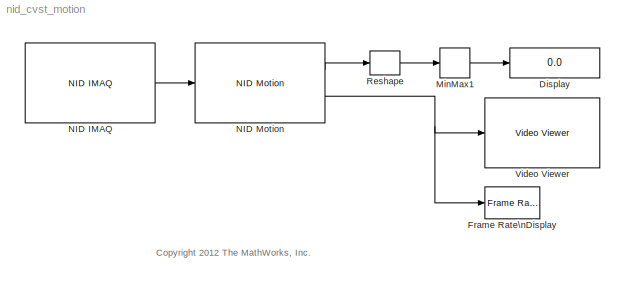
MODEL nid_cvst_motion
KIND model
BLOCK [Display] Display
  Decimation = 1
  Ports = [1]
  SID = 85
BLOCK [Reference] Frame Rate\nDisplay  REF=vipsnks/Frame Rate\nDisplay
  Ports = [1]
  SID = 81
  SourceBlock = vipsnks/Frame Rate\nDisplay
  SourceProductBaseCode = VP
  SourceProductName = Computer Vision Toolbox
  SourceType = Frame Rate Display
  UpdateRate = 10
BLOCK [MinMax] MinMax1
  Function = max
  InputSameDT = off
  Ports = [1, 1]
  SID = 83
  SaturateOnIntegerOverflow = off
BLOCK [Reference] NID IMAQ  REF=nid_lib/NID IMAQ
  Ports = [0, 1]
  SID = 78
  SourceBlock = nid_lib/NID IMAQ
  SourceType = NID IMAQ
  angle = 0
  angle_read = off
  imaq_depth = off
  imaq_image = off
  imaq_ir = off
  imaq_motion = on
  imaq_sample_time = 1/30
  imaq_skeleton = off
  mirror_image = off
  near_mode = off
  needPsiPose = off
  res_fps = VGA (640x480): 30 FPS
  seated_mode = off
  view_point = off
BLOCK [Reference] NID Motion  REF=nid_lib/NID Motion
  Ports = [1, 2]
  SID = 79
  SourceBlock = nid_lib/NID Motion
  SourceType = NID Motion
  viewer = on
BLOCK [Reshape] Reshape
  Ports = [1, 1]
  SID = 84
BLOCK [Reference] Video Viewer  REF=vipsnks/Video Viewer
  AxisZoom = on
  FigPos = [755 749 410 300]
  OpenAtMdlStart = on
  Ports = [1]
  SID = 86
  SourceBlock = vipsnks/Video Viewer
  SourceProductBaseCode = VP
  SourceProductName = Computer Vision Toolbox
  SourceType = Video Viewer
  UserData = DataTag0
  UserDataPersistent = on
  colormapValue = jet(256)
  imagePorts = One multidimensional signal
  inputType = Obsolete7b
  maxInputVal = 255
  minInputVal = 0
  specRange = off
  trueSizedOnce = off
  useColorMap = off
ANNOTATION (root): <copyright redacted>
LINE MinMax1:1 -> Display:1
LINE NID IMAQ:1 -> NID Motion:1
LINE NID Motion:1 -> Reshape:1
NET NID Motion:2 -> Frame Rate\nDisplay:1, Video Viewer:1
LINE Reshape:1 -> MinMax1:1
note: NET lines group one-source signal fan-out (src -> all destinations, sorted); 1:1 wires keep LINE
